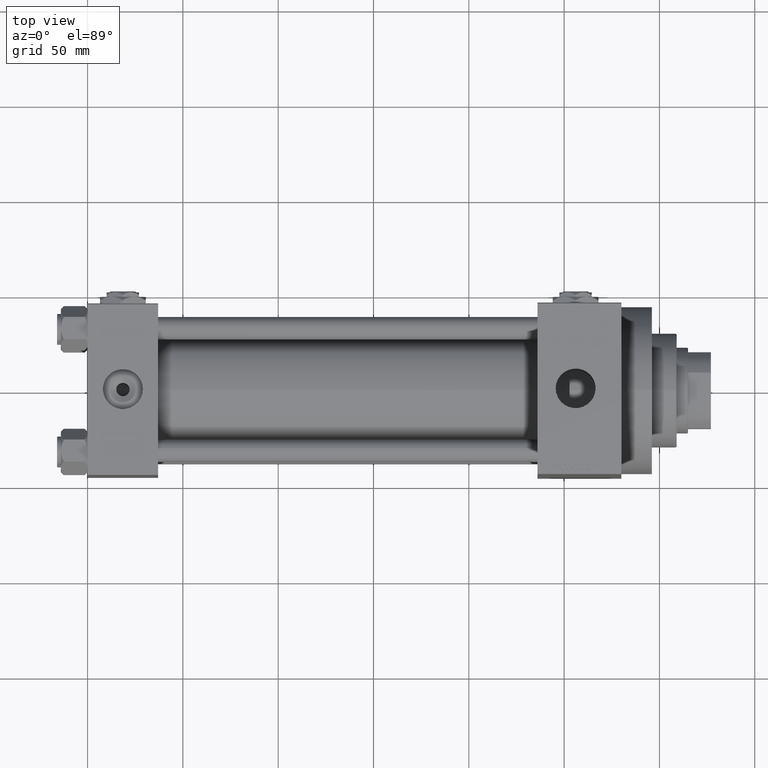
[diagram: clean part render]
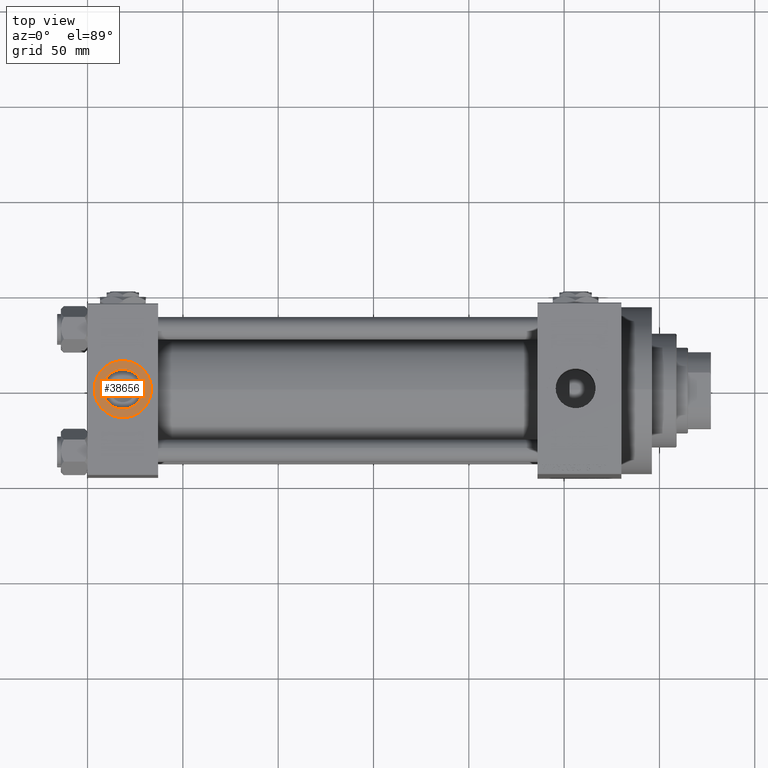
[diagram: same view with one face highlighted and labeled with its STEP entity id]
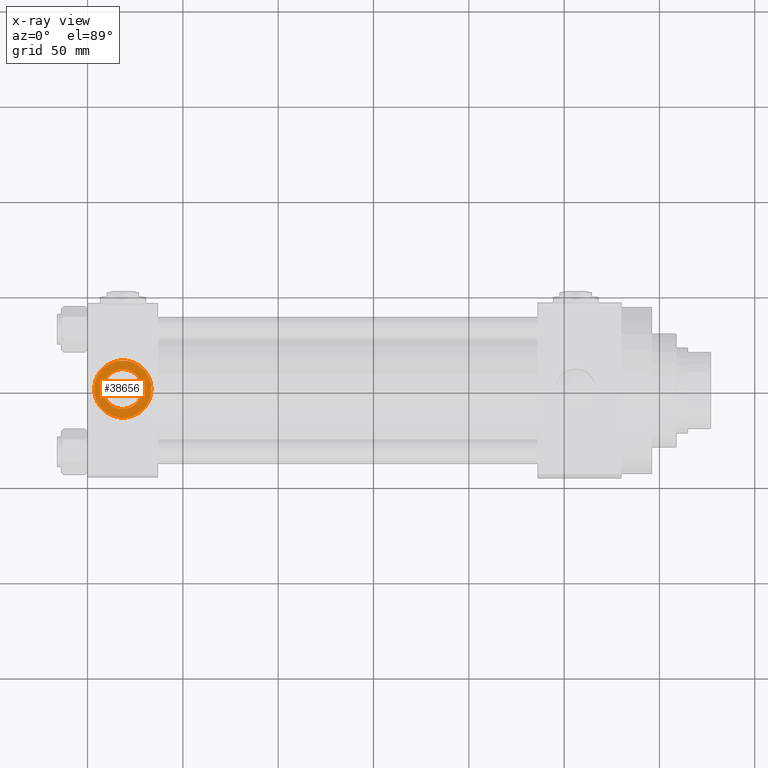
[diagram: x-ray of the same camera — body ghosted, the highlighted face saturated]
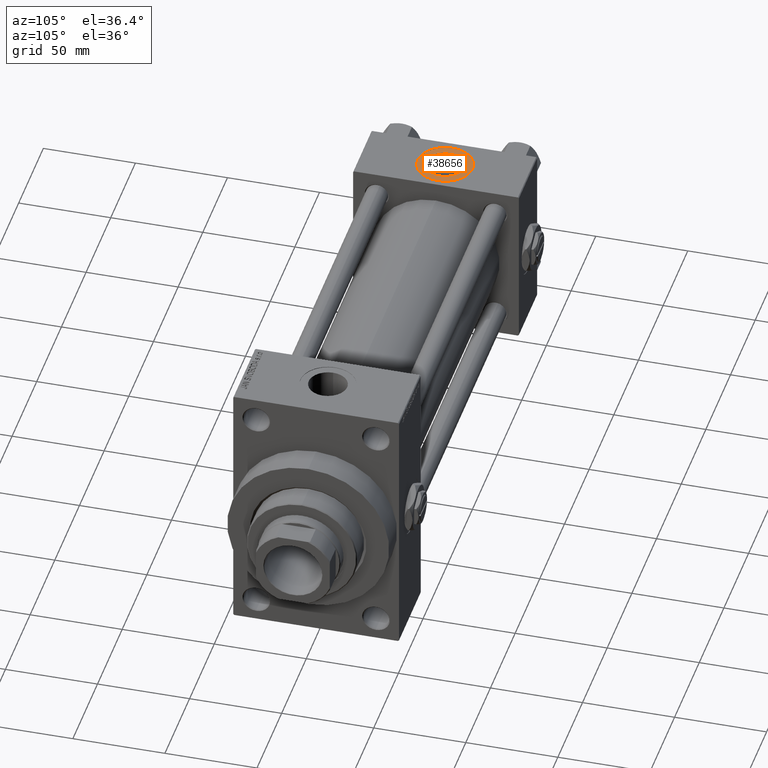
[diagram: same view with one face highlighted and labeled with its STEP entity id]
A machine part, top view. The second image highlights one B-rep face of the part: STEP entity #38656.
The next image is the same camera in x-ray: the body ghosted, the highlighted face saturated — about 0% of this face is hidden behind the body in this view.
A second angle (auxiliary view) of the same face is appended — the face is thin or edge-on in the first view.
In plain terms, the highlighted planar face has unit normal (0, 0, 1).
Its self-contained STEP definition (entity closure, byte-faithful):
#713 = ORIENTED_EDGE ( 'NONE', *, *, #8453, .F. ) ;
#790 = DIRECTION ( 'NONE',  ( 1.000000000000000000, 0.000000000000000000, 0.000000000000000000 ) ) ;
#1085 = EDGE_CURVE ( 'NONE', #37340, #45044, #37524, .T. ) ;
#1781 = DIRECTION ( 'NONE',  ( 1.000000000000000000, 0.000000000000000000, 0.000000000000000000 ) ) ;
#3124 = AXIS2_PLACEMENT_3D ( 'NONE', #32395, #24203, #1781 ) ;
#4176 = EDGE_LOOP ( 'NONE', ( #6909, #21900 ) ) ;
#4346 = PLANE ( 'NONE',  #27462 ) ;
#4700 = DIRECTION ( 'NONE',  ( 0.000000000000000000, 0.000000000000000000, 1.000000000000000000 ) ) ;
#5002 = DIRECTION ( 'NONE',  ( 0.000000000000000000, 0.000000000000000000, 1.000000000000000000 ) ) ;
#6909 = ORIENTED_EDGE ( 'NONE', *, *, #1085, .T. ) ;
#8384 = CARTESIAN_POINT ( 'NONE',  ( 33.50000000000000000, -8.673617379884038628E-15, 44.80000000000000426 ) ) ;
#8453 = EDGE_CURVE ( 'NONE', #44647, #26396, #35387, .T. ) ;
#12613 = CARTESIAN_POINT ( 'NONE',  ( 28.98000000000000043, -8.673617379884038628E-15, 44.80000000000000426 ) ) ;
#13715 = CARTESIAN_POINT ( 'NONE',  ( 3.499999999999997780, -6.836647181163008250E-15, 44.80000000000000426 ) ) ;
#13908 = AXIS2_PLACEMENT_3D ( 'NONE', #28119, #4700, #46798 ) ;
#16404 = ORIENTED_EDGE ( 'NONE', *, *, #26861, .F. ) ;
#19441 = CARTESIAN_POINT ( 'NONE',  ( 18.50000000000000000, -8.673617379884038628E-15, 44.80000000000000426 ) ) ;
#19554 = CARTESIAN_POINT ( 'NONE',  ( 18.50000000000000000, -8.673617379884038628E-15, 44.80000000000000426 ) ) ;
#21900 = ORIENTED_EDGE ( 'NONE', *, *, #45091, .T. ) ;
#22553 = DIRECTION ( 'NONE',  ( 0.000000000000000000, 0.000000000000000000, 1.000000000000000000 ) ) ;
#23540 = DIRECTION ( 'NONE',  ( 1.000000000000000000, 0.000000000000000000, -0.000000000000000000 ) ) ;
#24203 = DIRECTION ( 'NONE',  ( 0.000000000000000000, 0.000000000000000000, 1.000000000000000000 ) ) ;
#26396 = VERTEX_POINT ( 'NONE', #12613 ) ;
#26678 = DIRECTION ( 'NONE',  ( 0.000000000000000000, 0.000000000000000000, 1.000000000000000000 ) ) ;
#26861 = EDGE_CURVE ( 'NONE', #26396, #44647, #47730, .T. ) ;
#27462 = AXIS2_PLACEMENT_3D ( 'NONE', #19554, #22553, #23540 ) ;
#28119 = CARTESIAN_POINT ( 'NONE',  ( 18.50000000000000000, -8.673617379884038628E-15, 44.80000000000000426 ) ) ;
#32395 = CARTESIAN_POINT ( 'NONE',  ( 18.50000000000000000, -8.673617379884038628E-15, 44.80000000000000426 ) ) ;
#33987 = FACE_BOUND ( 'NONE', #42425, .T. ) ;
#35387 = CIRCLE ( 'NONE', #13908, 10.48000000000000043 ) ;
#37340 = VERTEX_POINT ( 'NONE', #8384 ) ;
#37524 = CIRCLE ( 'NONE', #39922, 15.00000000000000355 ) ;
#38175 = AXIS2_PLACEMENT_3D ( 'NONE', #19441, #26678, #49086 ) ;
#38474 = FACE_OUTER_BOUND ( 'NONE', #4176, .T. ) ;
#38656 = ADVANCED_FACE ( 'NONE', ( #33987, #38474 ), #4346, .T. ) ;
#39922 = AXIS2_PLACEMENT_3D ( 'NONE', #43378, #5002, #790 ) ;
#42425 = EDGE_LOOP ( 'NONE', ( #16404, #713 ) ) ;
#42825 = CIRCLE ( 'NONE', #3124, 15.00000000000000355 ) ;
#43196 = CARTESIAN_POINT ( 'NONE',  ( 8.019999999999999574, -7.390187534377611561E-15, 44.80000000000000426 ) ) ;
#43378 = CARTESIAN_POINT ( 'NONE',  ( 18.50000000000000000, -8.673617379884038628E-15, 44.80000000000000426 ) ) ;
#44647 = VERTEX_POINT ( 'NONE', #43196 ) ;
#45044 = VERTEX_POINT ( 'NONE', #13715 ) ;
#45091 = EDGE_CURVE ( 'NONE', #45044, #37340, #42825, .T. ) ;
#46798 = DIRECTION ( 'NONE',  ( 1.000000000000000000, 0.000000000000000000, 0.000000000000000000 ) ) ;
#47730 = CIRCLE ( 'NONE', #38175, 10.48000000000000043 ) ;
#49086 = DIRECTION ( 'NONE',  ( 1.000000000000000000, 0.000000000000000000, 0.000000000000000000 ) ) ;